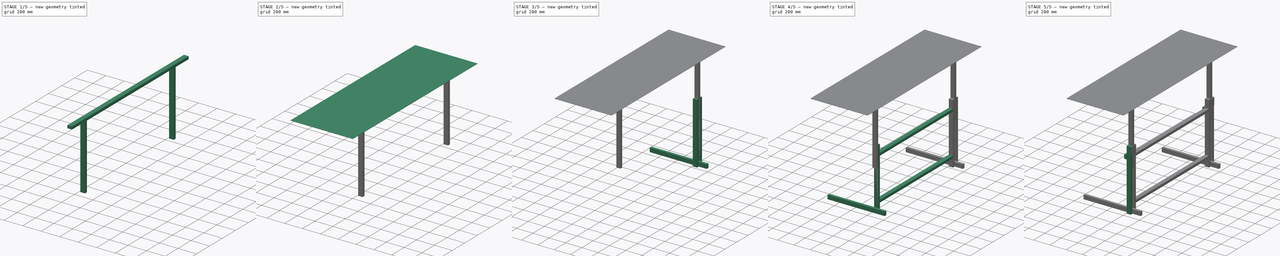
[diagram: build sequence overview — one tinted view per stage of 5, left to right]
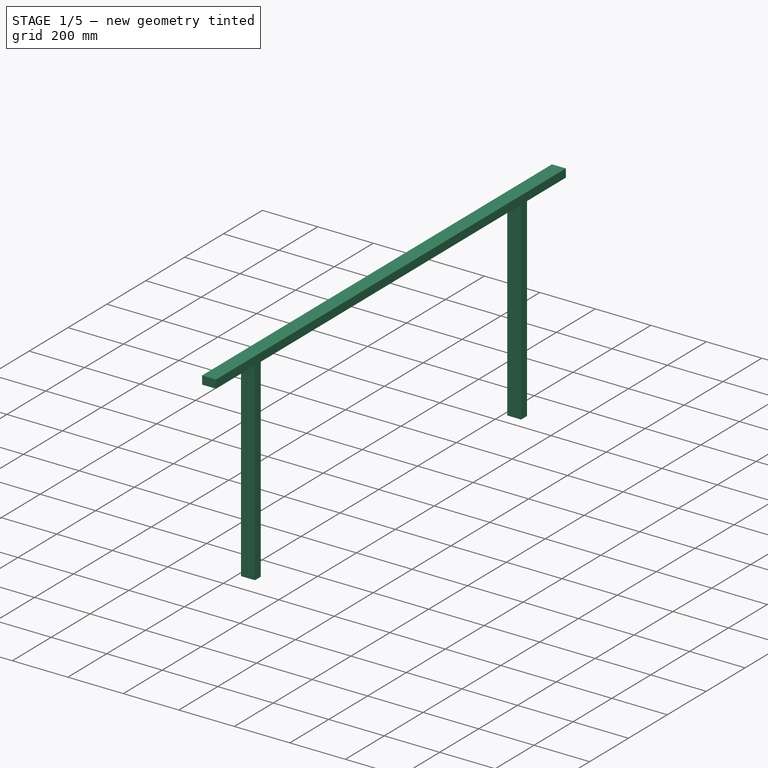
[diagram: stage 1 of 5 — iso view after this stage's code; geometry added in this stage tinted green]
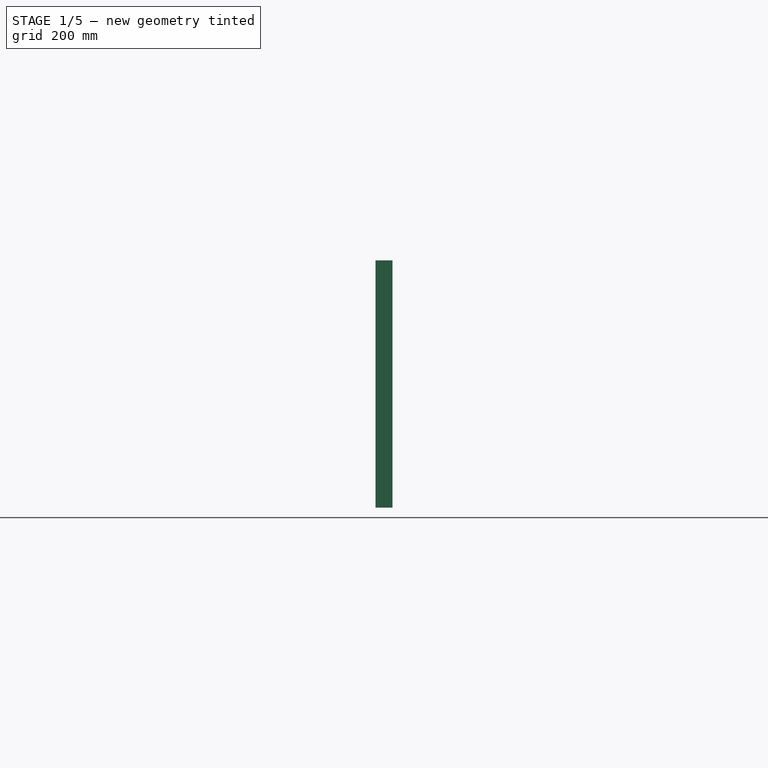
[diagram: stage 1 of 5 — front view after this stage's code; geometry added in this stage tinted green]
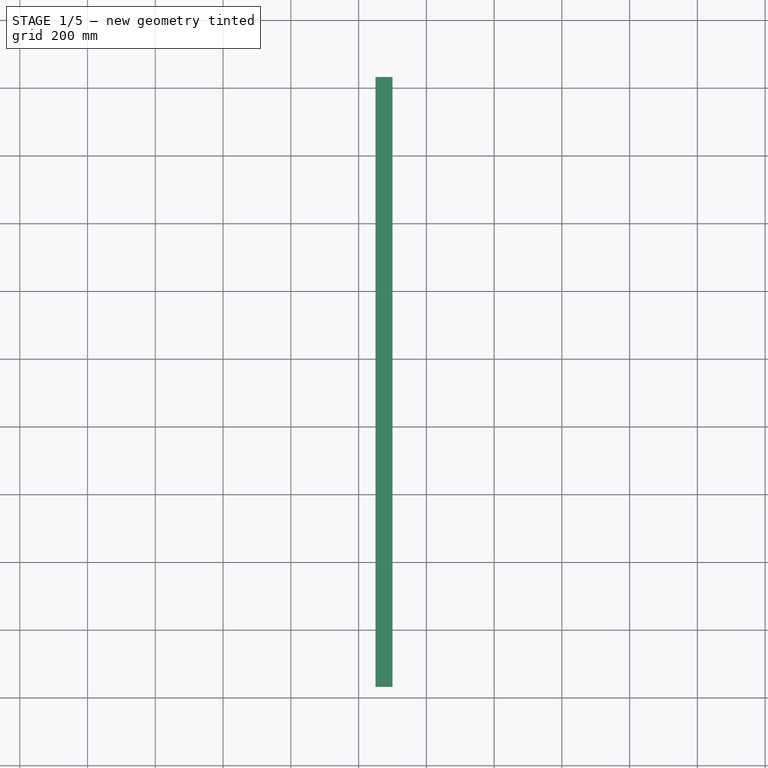
[diagram: stage 1 of 5 — top view after this stage's code; geometry added in this stage tinted green]
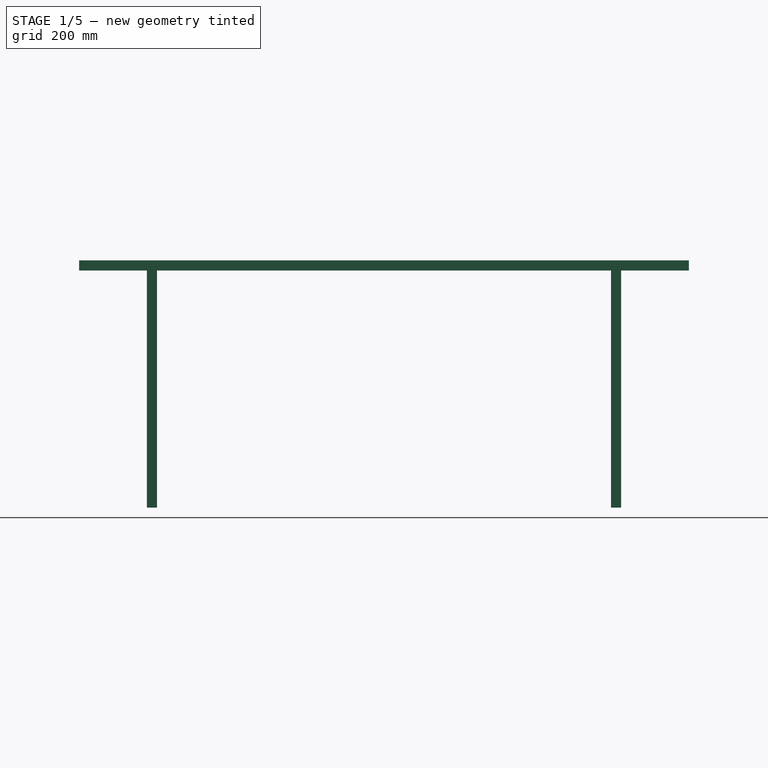
[diagram: stage 1 of 5 — right view after this stage's code; geometry added in this stage tinted green]
FCSTD DOCUMENT  (FreeCAD 0.19R24276 (Git))
Label: oficina
License: All rights reserved
LicenseURL: http://en.wikipedia.org/wiki/All_rights_reserved
objects: Sketcher::SketchObject×16, PartDesign::Pad×15, PartDesign::Body×3
note: 49 computed .brp shape members not serialized (recipe doc carries the construction recipe); baked Part::Feature solids carry a one-line shape summary decoded from their .brp

FEATURE [PartDesign::Body] Body001  label="parteDeBaixo"
  Group = -> [Sketch001,Pad,Sketch002,Pad001,Sketch003,Pad002,Sketch004,Pad003,Sketch005,Pad004,Sketch006,Pad005,Sketch007,Pad006,Sketch008,Pad007,Sketch009,Pad008]
  Origin = -> Origin001
  Tip = -> Pad008
FEATURE [Sketcher::SketchObject] Sketch010
  AttachmentOffset = pos=(0,0,500) rot=(0,0,1;0rad)
  FullyConstrained = true
  MapMode = 5
  Placement = pos=(0,0,500) rot=(0,0,1;0rad)
  Support = -> [XY_Plane002]
  expr: Constraints[11] = -(50 + 300 + 30 + 30)
  sketch-geometry (4):
    g0: LineSegment StartX=-150 StartY=-380 StartZ=0 EndX=-100 EndY=-380 EndZ=0
    g1: LineSegment StartX=-100 StartY=-380 StartZ=0 EndX=-100 EndY=-410 EndZ=0
    g2: LineSegment StartX=-100 StartY=-410 StartZ=0 EndX=-150 EndY=-410 EndZ=0
    g3: LineSegment StartX=-150 StartY=-410 StartZ=0 EndX=-150 EndY=-380 EndZ=0
  constraints (12):
    c: Coincident(g0,g1)
    c: Coincident(g1,g2)
    c: Coincident(g2,g3)
    c: Coincident(g3,g0)
    c: Horizontal(g0)
    c: Horizontal(g2)
    c: Vertical(g1)
    c: Vertical(g3)
    c: DistanceX(g0,g0) = 50
    c: DistanceY(g1,g1) = 30
    c: DistanceX(g1) = -100
    c: DistanceY(g1) = -410
FEATURE [PartDesign::Pad] Pad009  label="baseEsquerda001"
  Direction = (1,1,1)
  Length = 700
  Length2 = 100
  Profile = -> Sketch010
  Type = 0
  expr: Length = 750 - 50
FEATURE [Sketcher::SketchObject] Sketch011
  ExternalGeometry = -> [Pad009]
  FullyConstrained = true
  MapMode = 5
  Placement = pos=(0,0,1200) rot=(0,0,1;0rad)
  Support = -> [Pad009]
  expr: Constraints[11] = (1800 - (1280 + 30 + 30 + 30 + 30)) / 2
  expr: Constraints[9] = 2000 - 100 - 100
  sketch-geometry (4):
    g0: LineSegment StartX=-150 StartY=-180 StartZ=0 EndX=-100 EndY=-180 EndZ=0
    g1: LineSegment StartX=-100 StartY=-180 StartZ=0 EndX=-100 EndY=-1980 EndZ=0
    g2: LineSegment StartX=-100 StartY=-1980 StartZ=0 EndX=-150 EndY=-1980 EndZ=0
    g3: LineSegment StartX=-150 StartY=-1980 StartZ=0 EndX=-150 EndY=-180 EndZ=0
  constraints (12):
    c: Coincident(g0,g1)
    c: Coincident(g1,g2)
    c: Coincident(g2,g3)
    c: Coincident(g3,g0)
    c: Horizontal(g0)
    c: Horizontal(g2)
    c: Vertical(g1)
    c: Vertical(g3)
    c: DistanceX(g0,g0) = 50
    c: DistanceY(g1,g1) = 1800
    c: DistanceX(g0,g-3) = 0
    c: DistanceY(g-3,g0) = 200
FEATURE [PartDesign::Pad] Pad010  label="viga"
  BaseFeature = -> Pad009
  Direction = (1,1,1)
  Length = 30
  Length2 = 100
  Profile = -> Sketch011
  Type = 0
FEATURE [Sketcher::SketchObject] Sketch012
  ExternalGeometry = -> [Pad010]
  FullyConstrained = true
  MapMode = 5
  Placement = pos=(0,0,1200) rot=(1,0,0;3.14159rad)
  Support = -> [Pad010]
  expr: Constraints[10] = 1280 + 30 + 30
  sketch-geometry (4):
    g0: LineSegment StartX=-150 StartY=1780 StartZ=0 EndX=-100 EndY=1780 EndZ=0
    g1: LineSegment StartX=-100 StartY=1780 StartZ=0 EndX=-100 EndY=1750 EndZ=0
    g2: LineSegment StartX=-100 StartY=1750 StartZ=0 EndX=-150 EndY=1750 EndZ=0
    g3: LineSegment StartX=-150 StartY=1750 StartZ=0 EndX=-150 EndY=1780 EndZ=0
  constraints (12):
    c: Coincident(g0,g1)
    c: Coincident(g1,g2)
    c: Coincident(g2,g3)
    c: Coincident(g3,g0)
    c: Horizontal(g0)
    c: Horizontal(g2)
    c: Vertical(g1)
    c: Vertical(g3)
    c: DistanceX(g0,g0) = 50
    c: DistanceY(g3,g3) = 30
    c: DistanceY(g-4,g1) = 1340
    c: DistanceX(g-4,g1) = 0
FEATURE [PartDesign::Pad] Pad011  label="baseDireita001"
  BaseFeature = -> Pad010
  Direction = (1,1,1)
  Length = 700
  Length2 = 100
  Profile = -> Sketch012
  Type = 0
  expr: Length = 750 - 50
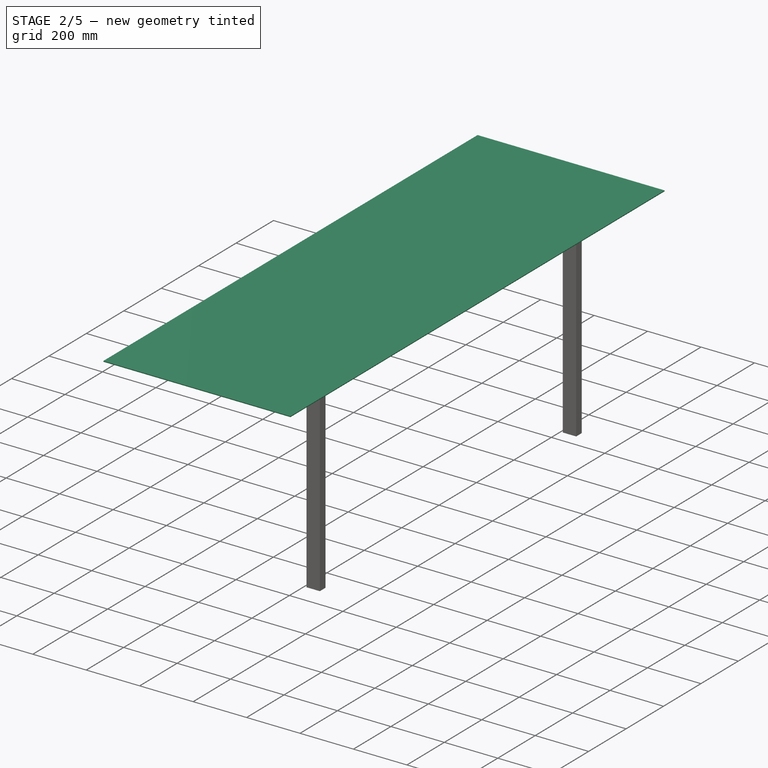
[diagram: stage 2 of 5 — iso view after this stage's code; geometry added in this stage tinted green]
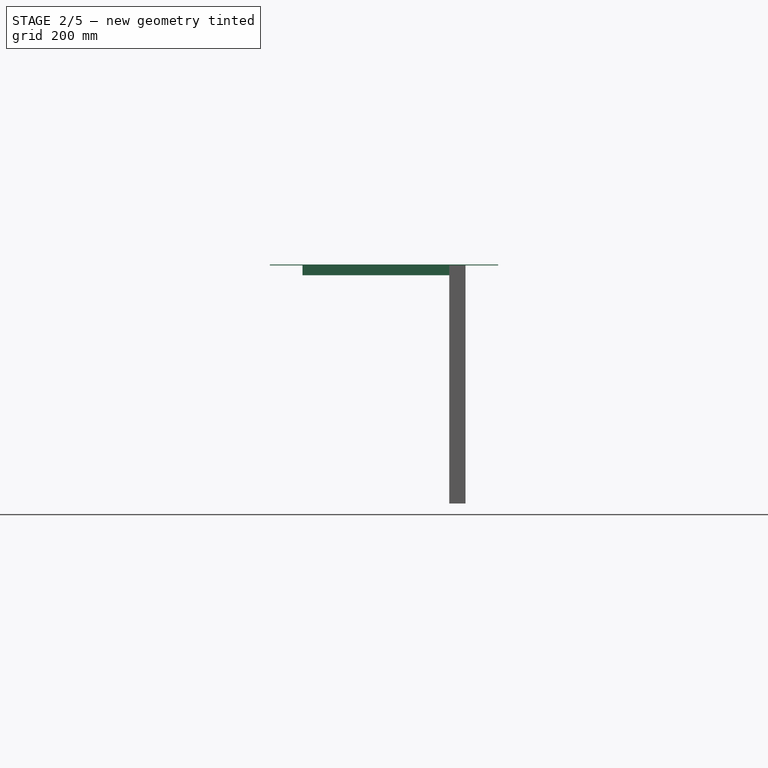
[diagram: stage 2 of 5 — front view after this stage's code; geometry added in this stage tinted green]
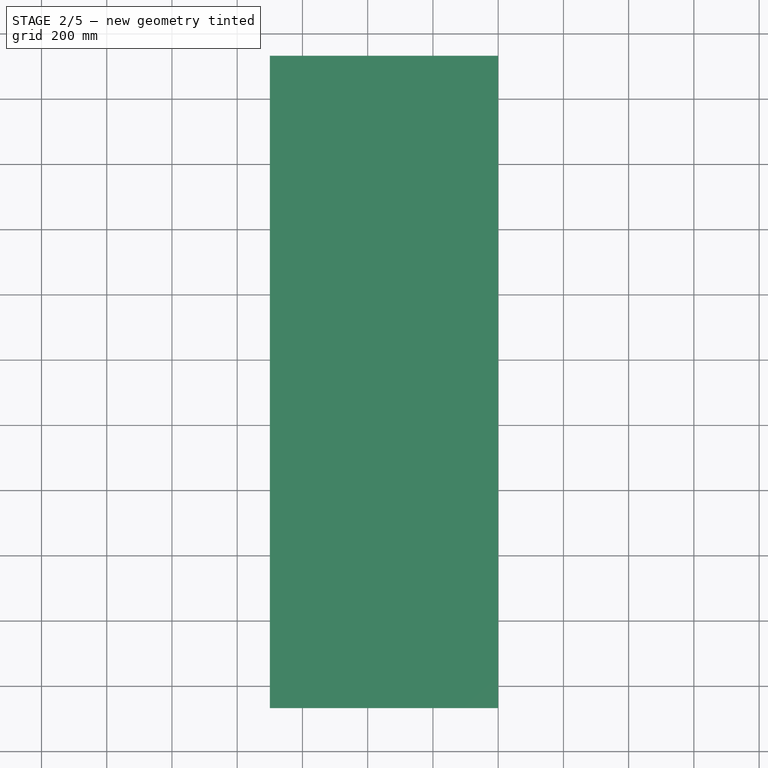
[diagram: stage 2 of 5 — top view after this stage's code; geometry added in this stage tinted green]
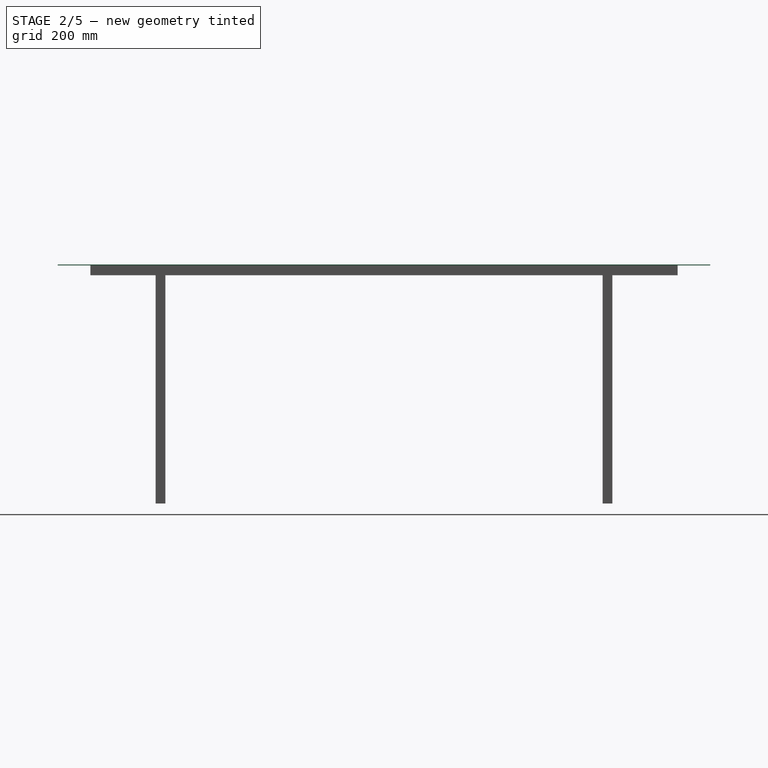
[diagram: stage 2 of 5 — right view after this stage's code; geometry added in this stage tinted green]
FEATURE [Sketcher::SketchObject] Sketch013
  ExternalGeometry = -> [Pad011]
  FullyConstrained = true
  MapMode = 5
  Placement = pos=(-150,0,0) rot=(0.57735,-0.57735,-0.57735;2.0944rad)
  Support = -> [Pad011]
  sketch-geometry (8):
    g0: LineSegment StartX=360 StartY=1230 StartZ=0 EndX=410 EndY=1230 EndZ=0
    g1: LineSegment StartX=410 StartY=1230 StartZ=0 EndX=410 EndY=1200 EndZ=0
    g2: LineSegment StartX=410 StartY=1200 StartZ=0 EndX=360 EndY=1200 EndZ=0
    g3: LineSegment StartX=360 StartY=1200 StartZ=0 EndX=360 EndY=1230 EndZ=0
    g4: LineSegment StartX=1750 StartY=1230 StartZ=0 EndX=1800 EndY=1230 EndZ=0
    g5: LineSegment StartX=1800 StartY=1230 StartZ=0 EndX=1800 EndY=1200 EndZ=0
    g6: LineSegment StartX=1800 StartY=1200 StartZ=0 EndX=1750 EndY=1200 EndZ=0
    g7: LineSegment StartX=1750 StartY=1200 StartZ=0 EndX=1750 EndY=1230 EndZ=0
  constraints (22):
    c: Coincident(g0,g1)
    c: Coincident(g1,g2)
    c: Coincident(g2,g3)
    c: Coincident(g3,g0)
    c: Horizontal(g0)
    c: Horizontal(g2)
    c: Vertical(g1)
    c: Vertical(g3)
    c: Coincident(g4,g5)
    c: Coincident(g5,g6)
    c: Coincident(g6,g7)
    c: Coincident(g7,g4)
    c: Horizontal(g4)
    c: Horizontal(g6)
    c: Vertical(g5)
    c: Vertical(g7)
    c: DistanceX(g0,g0) = 50
    c: Equal(g0,g4)
    c: DistanceY(g3,g3) = 30
    c: Equal(g3,g7)
    c: Coincident(g1,g-3)
    c: Coincident(g6,g-5)
FEATURE [PartDesign::Pad] Pad012  label="tirantes"
  BaseFeature = -> Pad011
  Direction = (1,1,1)
  Length = 400
  Length2 = 100
  Profile = -> Sketch013
  Type = 0
  expr: Length = 700 - 100 - 50 - 100 - 50
FEATURE [Sketcher::SketchObject] Sketch014
  ExternalGeometry = -> [Pad012]
  FullyConstrained = true
  MapMode = 5
  Placement = pos=(-550,0,0) rot=(0.57735,-0.57735,-0.57735;2.0944rad)
  Support = -> [Pad012]
  sketch-geometry (4):
    g0: LineSegment StartX=180 StartY=1230 StartZ=0 EndX=1980 EndY=1230 EndZ=0
    g1: LineSegment StartX=1980 StartY=1230 StartZ=0 EndX=1980 EndY=1200 EndZ=0
    g2: LineSegment StartX=1980 StartY=1200 StartZ=0 EndX=180 EndY=1200 EndZ=0
    g3: LineSegment StartX=180 StartY=1200 StartZ=0 EndX=180 EndY=1230 EndZ=0
  constraints (12):
    c: Coincident(g0,g1)
    c: Coincident(g1,g2)
    c: Coincident(g2,g3)
    c: Coincident(g3,g0)
    c: Horizontal(g0)
    c: Horizontal(g2)
    c: Vertical(g1)
    c: Vertical(g3)
    c: DistanceY(g3,g3) = 30
    c: DistanceX(g0,g0) = 1800
    c: DistanceY(g0,g-3) = 0
    c: DistanceX(g0,g-3) = 180
FEATURE [PartDesign::Pad] Pad013  label="viga2"
  BaseFeature = -> Pad012
  Direction = (1,1,1)
  Length = 50
  Length2 = 100
  Profile = -> Sketch014
  Type = 0
FEATURE [Sketcher::SketchObject] Sketch015
  ExternalGeometry = -> [Pad013]
  FullyConstrained = true
  MapMode = 5
  Placement = pos=(0,0,1230) rot=(0,0,1;0rad)
  Support = -> [Pad013]
  expr: Constraints[11] = (2000 - 1800) / 2
  sketch-geometry (4):
    g0: LineSegment StartX=-700 StartY=-80 StartZ=0 EndX=0 EndY=-80 EndZ=0
    g1: LineSegment StartX=0 StartY=-80 StartZ=0 EndX=0 EndY=-2080 EndZ=0
    g2: LineSegment StartX=0 StartY=-2080 StartZ=0 EndX=-700 EndY=-2080 EndZ=0
    g3: LineSegment StartX=-700 StartY=-2080 StartZ=0 EndX=-700 EndY=-80 EndZ=0
  constraints (12):
    c: Coincident(g0,g1)
    c: Coincident(g1,g2)
    c: Coincident(g2,g3)
    c: Coincident(g3,g0)
    c: Horizontal(g0)
    c: Horizontal(g2)
    c: Vertical(g1)
    c: Vertical(g3)
    c: DistanceY(g3,g3) = 2000
    c: DistanceX(g2,g2) = 700
    c: DistanceX(g0,g-1) = 0
    c: DistanceY(g-3,g0) = 100
FEATURE [PartDesign::Pad] Pad014
  BaseFeature = -> Pad013
  Direction = (1,1,1)
  Length = 3
  Length2 = 100
  Profile = -> Sketch015
  Type = 0
FEATURE [PartDesign::Body] Body002  label="parteDeCima"
  Group = -> [Sketch010,Pad009,Sketch011,Pad010,Sketch012,Pad011,Sketch013,Pad012,Sketch014,Pad013,Sketch015,Pad014]
  Origin = -> Origin002
  Tip = -> Pad014
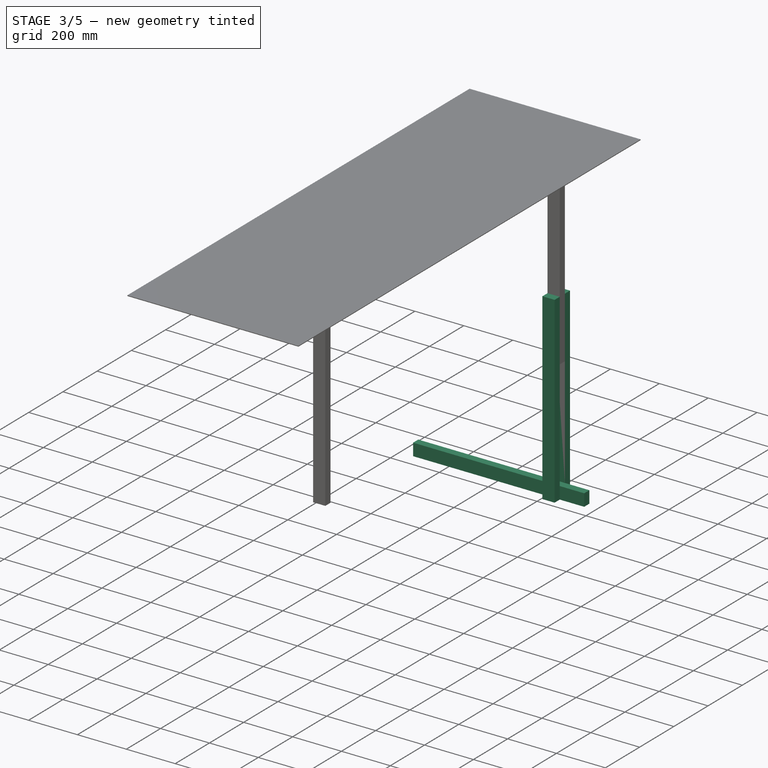
[diagram: stage 3 of 5 — iso view after this stage's code; geometry added in this stage tinted green]
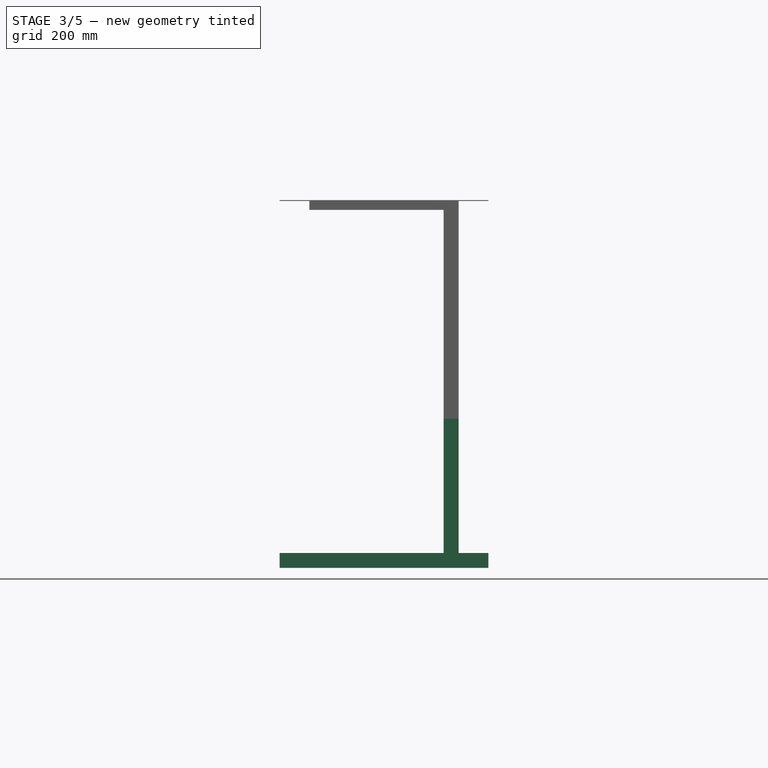
[diagram: stage 3 of 5 — front view after this stage's code; geometry added in this stage tinted green]
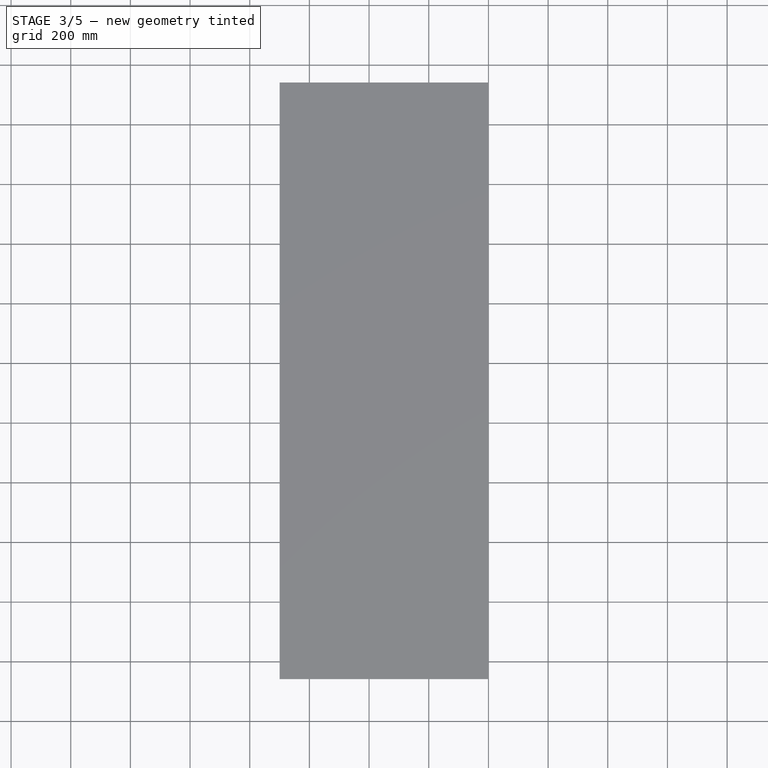
[diagram: stage 3 of 5 — top view after this stage's code; geometry added in this stage tinted green]
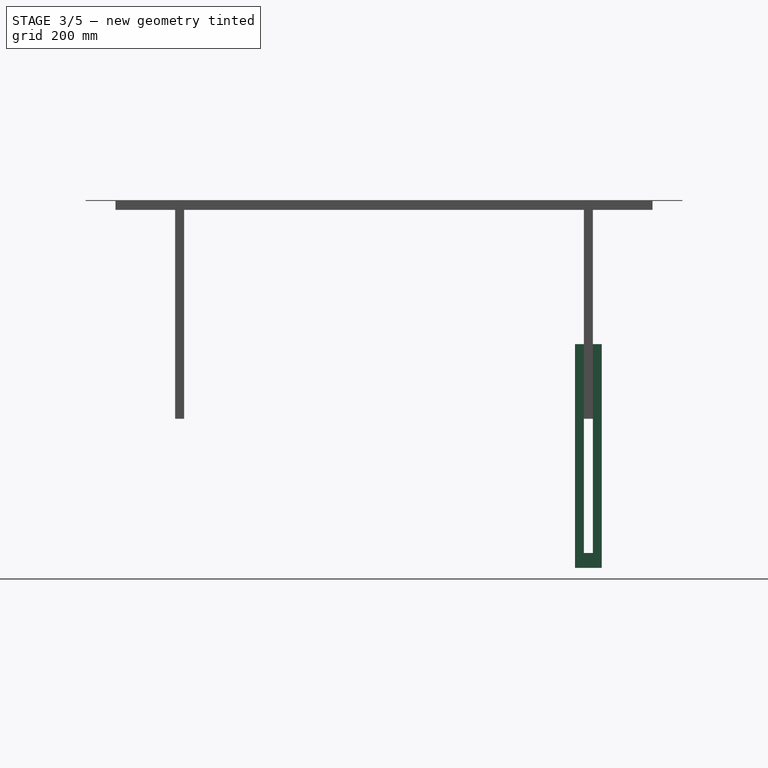
[diagram: stage 3 of 5 — right view after this stage's code; geometry added in this stage tinted green]
FEATURE [Sketcher::SketchObject] Sketch
  FullyConstrained = true
  MapMode = 5
  Support = -> [XY_Plane]
  sketch-geometry (4):
    g0: LineSegment StartX=0 StartY=-2100 StartZ=0 EndX=-2540 EndY=-2100 EndZ=0
    g1: LineSegment StartX=-2540 StartY=-2100 StartZ=0 EndX=-4640 EndY=0 EndZ=0
    g2: LineSegment StartX=-4640 StartY=0 StartZ=0 EndX=0 EndY=0 EndZ=0
    g3: LineSegment StartX=0 StartY=0 StartZ=0 EndX=0 EndY=-2100 EndZ=0
  constraints (11):
    c: Horizontal(g2)
    c: Horizontal(g0)
    c: Vertical(g3)
    c: Coincident(g3,g-1)
    c: Coincident(g3,g0)
    c: Coincident(g0,g1)
    c: Coincident(g1,g2)
    c: Coincident(g2,g3)
    c: DistanceY(g3,g3) = 2100
    c: DistanceX(g0,g0) = 2540
    c: Angle(g0,g1) = 2.35619
FEATURE [PartDesign::Body] Body  label="area"
  Group = -> [Sketch]
  Origin = -> Origin
FEATURE [Sketcher::SketchObject] Sketch001
  FullyConstrained = true
  MapMode = 5
  Placement = pos=(0,0,0) rot=(0.57735,0.57735,0.57735;2.0944rad)
  Support = -> [YZ_Plane001]
  expr: Constraints[11] = 50 + 30 + 300
  sketch-geometry (4):
    g0: LineSegment StartX=-410 StartY=50 StartZ=0 EndX=-380 EndY=50 EndZ=0
    g1: LineSegment StartX=-380 StartY=50 StartZ=0 EndX=-380 EndY=0 EndZ=0
    g2: LineSegment StartX=-380 StartY=0 StartZ=0 EndX=-410 EndY=0 EndZ=0
    g3: LineSegment StartX=-410 StartY=0 StartZ=0 EndX=-410 EndY=50 EndZ=0
  constraints (12):
    c: Coincident(g0,g1)
    c: Coincident(g1,g2)
    c: Coincident(g2,g3)
    c: Coincident(g3,g0)
    c: Horizontal(g0)
    c: Horizontal(g2)
    c: Vertical(g1)
    c: Vertical(g3)
    c: DistanceY(g1,g1) = 50
    c: DistanceX(g2,g2) = 30
    c: DistanceY(g-1,g1) = 0
    c: DistanceX(g1,g-1) = 380
FEATURE [PartDesign::Pad] Pad  label="baseEsquerda"
  Direction = (1,1,1)
  Length = 700
  Length2 = 100
  Placement = pos=(0,0,0) rot=(0.57735,0.57735,0.57735;2.0944rad)
  Profile = -> Sketch001
  Reversed = true
  Type = 0
FEATURE [Sketcher::SketchObject] Sketch002
  FullyConstrained = true
  MapMode = 5
  Placement = pos=(-1.804e-13,-410,9.02e-14) rot=(-0.57735,-0.57735,0.57735;4.18879rad)
  Support = -> [Pad]
  sketch-geometry (4):
    g0: LineSegment StartX=-750 StartY=-100 StartZ=0 EndX=0 EndY=-100 EndZ=0
    g1: LineSegment StartX=0 StartY=-100 StartZ=0 EndX=0 EndY=-150 EndZ=0
    g2: LineSegment StartX=0 StartY=-150 StartZ=0 EndX=-750 EndY=-150 EndZ=0
    g3: LineSegment StartX=-750 StartY=-150 StartZ=0 EndX=-750 EndY=-100 EndZ=0
  constraints (12):
    c: Coincident(g0,g1)
    c: Coincident(g1,g2)
    c: Coincident(g2,g3)
    c: Coincident(g3,g0)
    c: Horizontal(g0)
    c: Horizontal(g2)
    c: Vertical(g1)
    c: Vertical(g3)
    c: DistanceY(g1,g1) = 50
    c: DistanceX(g2,g2) = 750
    c: DistanceX(g-1,g0) = 0
    c: DistanceY(g0,g-1) = 100
FEATURE [PartDesign::Pad] Pad001  label="peEsquerdo1"
  BaseFeature = -> Pad
  Direction = (1,1,1)
  Length = 30
  Length2 = 100
  Placement = pos=(0,0,0) rot=(0.57735,0.57735,0.57735;2.0944rad)
  Profile = -> Sketch002
  Type = 0
FEATURE [Sketcher::SketchObject] Sketch003
  ExternalGeometry = -> [Pad001]
  FullyConstrained = true
  MapMode = 5
  Placement = pos=(-1.672e-13,-380,8.36e-14) rot=(0.57735,0.57735,0.57735;4.18879rad)
  Support = -> [Pad001]
  sketch-geometry (4):
    g0: LineSegment StartX=0 StartY=-100 StartZ=0 EndX=750 EndY=-100 EndZ=0
    g1: LineSegment StartX=750 StartY=-100 StartZ=0 EndX=750 EndY=-150 EndZ=0
    g2: LineSegment StartX=750 StartY=-150 StartZ=0 EndX=0 EndY=-150 EndZ=0
    g3: LineSegment StartX=0 StartY=-150 StartZ=0 EndX=0 EndY=-100 EndZ=0
  constraints (12):
    c: Coincident(g0,g1)
    c: Coincident(g1,g2)
    c: Coincident(g2,g3)
    c: Coincident(g3,g0)
    c: Horizontal(g0)
    c: Horizontal(g2)
    c: Vertical(g1)
    c: Vertical(g3)
    c: DistanceY(g3,g3) = 50
    c: DistanceX(g0,g0) = 750
    c: DistanceX(g2,g-1) = 0
    c: DistanceY(g0,g-3) = 0
FEATURE [PartDesign::Pad] Pad002  label="peEsquerdo2"
  BaseFeature = -> Pad001
  Direction = (1,1,1)
  Length = 30
  Length2 = 100
  Placement = pos=(0,0,0) rot=(0.57735,0.57735,0.57735;2.0944rad)
  Profile = -> Sketch003
  Type = 0
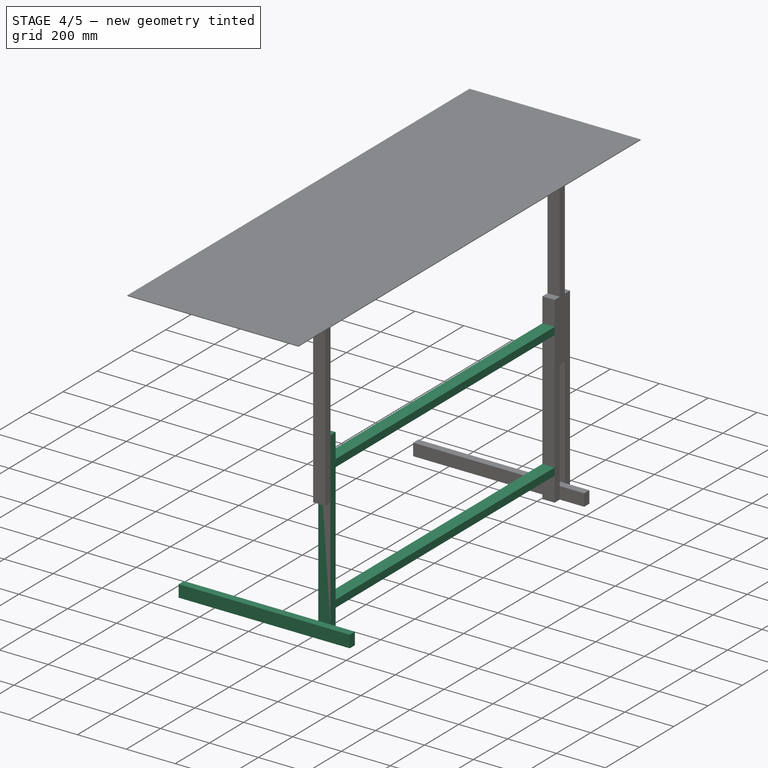
[diagram: stage 4 of 5 — iso view after this stage's code; geometry added in this stage tinted green]
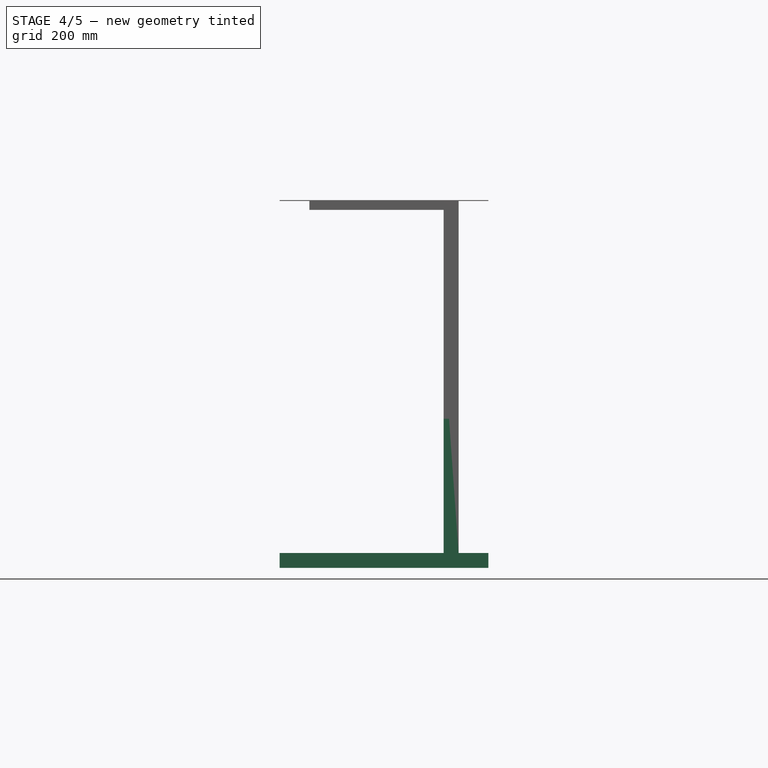
[diagram: stage 4 of 5 — front view after this stage's code; geometry added in this stage tinted green]
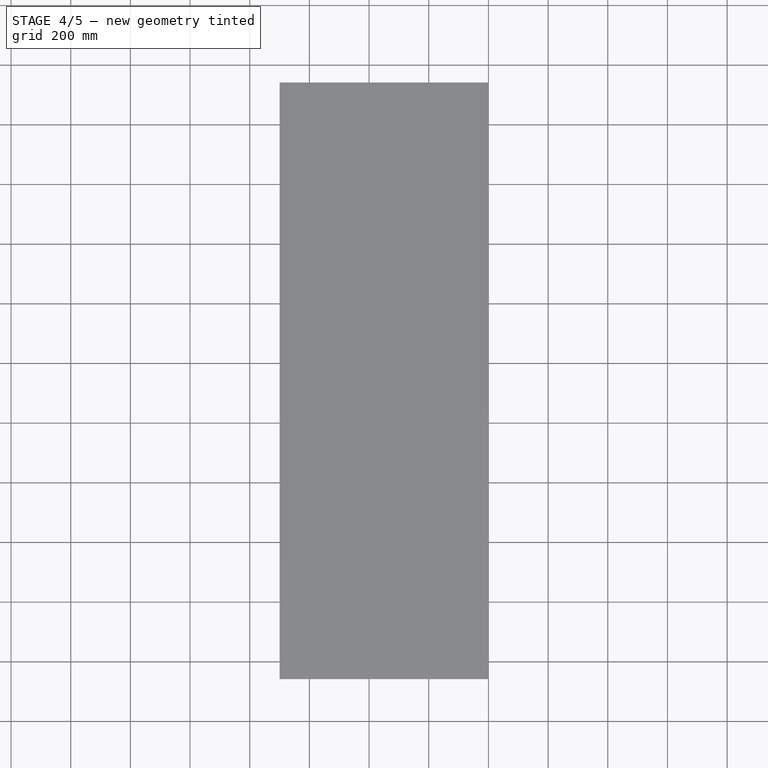
[diagram: stage 4 of 5 — top view after this stage's code; geometry added in this stage tinted green]
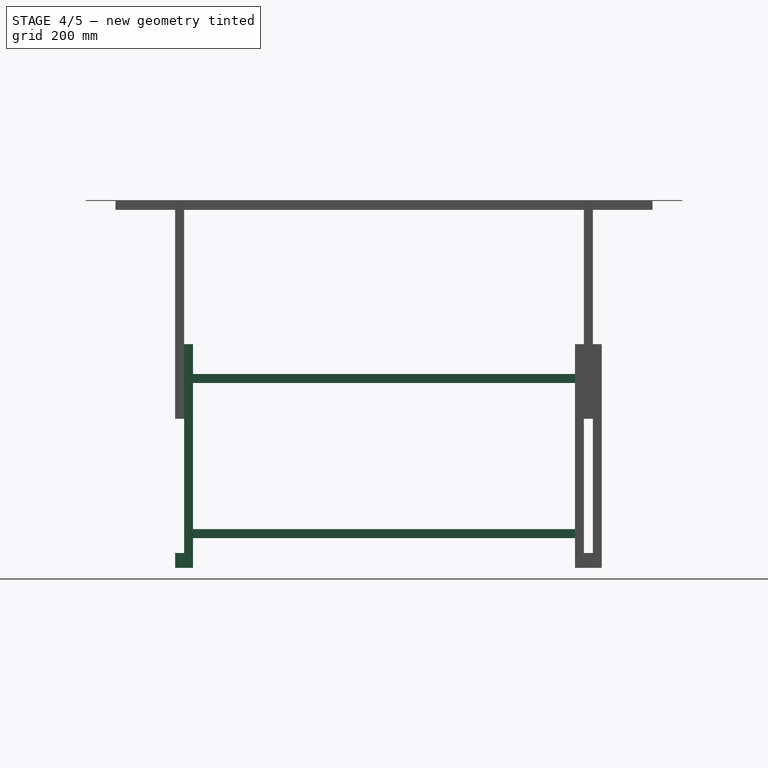
[diagram: stage 4 of 5 — right view after this stage's code; geometry added in this stage tinted green]
FEATURE [Sketcher::SketchObject] Sketch004
  ExternalGeometry = -> [Pad002]
  FullyConstrained = true
  MapMode = 5
  Placement = pos=(0,-440,6.6e-14) rot=(0.57735,0.57735,-0.57735;2.0944rad)
  Support = -> [Pad002]
  sketch-geometry (8):
    g0: LineSegment StartX=-130 StartY=-100 StartZ=0 EndX=-100 EndY=-100 EndZ=0
    g1: LineSegment StartX=-100 StartY=-100 StartZ=0 EndX=-100 EndY=-150 EndZ=0
    g2: LineSegment StartX=-100 StartY=-150 StartZ=0 EndX=-130 EndY=-150 EndZ=0
    g3: LineSegment StartX=-130 StartY=-150 StartZ=0 EndX=-130 EndY=-100 EndZ=0
    g4: LineSegment StartX=-650 StartY=-100 StartZ=0 EndX=-620 EndY=-100 EndZ=0
    g5: LineSegment StartX=-620 StartY=-100 StartZ=0 EndX=-620 EndY=-150 EndZ=0
    g6: LineSegment StartX=-620 StartY=-150 StartZ=0 EndX=-650 EndY=-150 EndZ=0
    g7: LineSegment StartX=-650 StartY=-150 StartZ=0 EndX=-650 EndY=-100 EndZ=0
  constraints (24):
    c: Coincident(g0,g1)
    c: Coincident(g1,g2)
    c: Coincident(g2,g3)
    c: Coincident(g3,g0)
    c: Horizontal(g0)
    c: Horizontal(g2)
    c: Vertical(g1)
    c: Vertical(g3)
    c: Coincident(g4,g5)
    c: Coincident(g5,g6)
    c: Coincident(g6,g7)
    c: Coincident(g7,g4)
    c: Horizontal(g4)
    c: Horizontal(g6)
    c: Vertical(g5)
    c: Vertical(g7)
    c: DistanceY(g1,g1) = 50
    c: Equal(g1,g5)
    c: DistanceX(g0,g0) = 30
    c: Equal(g2,g6)
    c: DistanceX(g1,g-1) = 100
    c: DistanceY(g-3,g1) = 0
    c: DistanceY(g-3,g5) = 0
    c: DistanceX(g-3,g6) = 100
FEATURE [PartDesign::Pad] Pad003  label="vigas"
  BaseFeature = -> Pad002
  Direction = (1,1,1)
  Length = 1280
  Length2 = 100
  Placement = pos=(0,0,0) rot=(0.57735,0.57735,0.57735;2.0944rad)
  Profile = -> Sketch004
  Type = 0
  expr: Length = 2000 - 300 - 300 - 30 - 30 - 30 - 30
FEATURE [Sketcher::SketchObject] Sketch005
  ExternalGeometry = -> [Pad003]
  FullyConstrained = true
  MapMode = 5
  Placement = pos=(0,-1720,0) rot=(0.57735,0.57735,-0.57735;2.0944rad)
  Support = -> [Pad003]
  sketch-geometry (4):
    g0: LineSegment StartX=-750 StartY=-100 StartZ=0 EndX=-5.684e-13 EndY=-100 EndZ=0
    g1: LineSegment StartX=-5.684e-13 StartY=-100 StartZ=0 EndX=-5.684e-13 EndY=-150 EndZ=0
    g2: LineSegment StartX=-5.684e-13 StartY=-150 StartZ=0 EndX=-750 EndY=-150 EndZ=0
    g3: LineSegment StartX=-750 StartY=-150 StartZ=0 EndX=-750 EndY=-100 EndZ=0
  constraints (11):
    c: Coincident(g0,g1)
    c: Coincident(g1,g2)
    c: Coincident(g2,g3)
    c: Coincident(g3,g0)
    c: Horizontal(g0)
    c: Horizontal(g2)
    c: Vertical(g1)
    c: Vertical(g3)
    c: Coincident(g0,g-5)
    c: DistanceX(g2,g2) = 750
    c: DistanceY(g3,g3) = 50
FEATURE [PartDesign::Pad] Pad004  label="peDireito1"
  BaseFeature = -> Pad003
  Direction = (1,1,1)
  Length = 30
  Length2 = 100
  Placement = pos=(0,0,0) rot=(0.57735,0.57735,0.57735;2.0944rad)
  Profile = -> Sketch005
  Type = 0
FEATURE [Sketcher::SketchObject] Sketch006
  ExternalGeometry = -> [Pad004]
  FullyConstrained = true
  MapMode = 5
  Placement = pos=(0,-1750,5.25e-13) rot=(0.57735,0.57735,-0.57735;2.0944rad)
  Support = -> [Pad004]
  sketch-geometry (4):
    g0: LineSegment StartX=-50 StartY=0 StartZ=0 EndX=0 EndY=0 EndZ=0
    g1: LineSegment StartX=0 StartY=0 StartZ=0 EndX=0 EndY=-700 EndZ=0
    g2: LineSegment StartX=0 StartY=-700 StartZ=0 EndX=-50 EndY=-700 EndZ=0
    g3: LineSegment StartX=-50 StartY=-700 StartZ=0 EndX=-50 EndY=0 EndZ=0
  constraints (10):
    c: Coincident(g0,g1)
    c: Coincident(g1,g2)
    c: Coincident(g2,g3)
    c: Coincident(g3,g0)
    c: Horizontal(g0)
    c: Horizontal(g2)
    c: Vertical(g1)
    c: Vertical(g3)
    c: Coincident(g0,g-1)
    c: Coincident(g2,g-3)
FEATURE [PartDesign::Pad] Pad005  label="baseDireita"
  BaseFeature = -> Pad004
  Direction = (1,1,1)
  Length = 30
  Length2 = 100
  Placement = pos=(0,0,0) rot=(0.57735,0.57735,0.57735;2.0944rad)
  Profile = -> Sketch006
  Type = 0
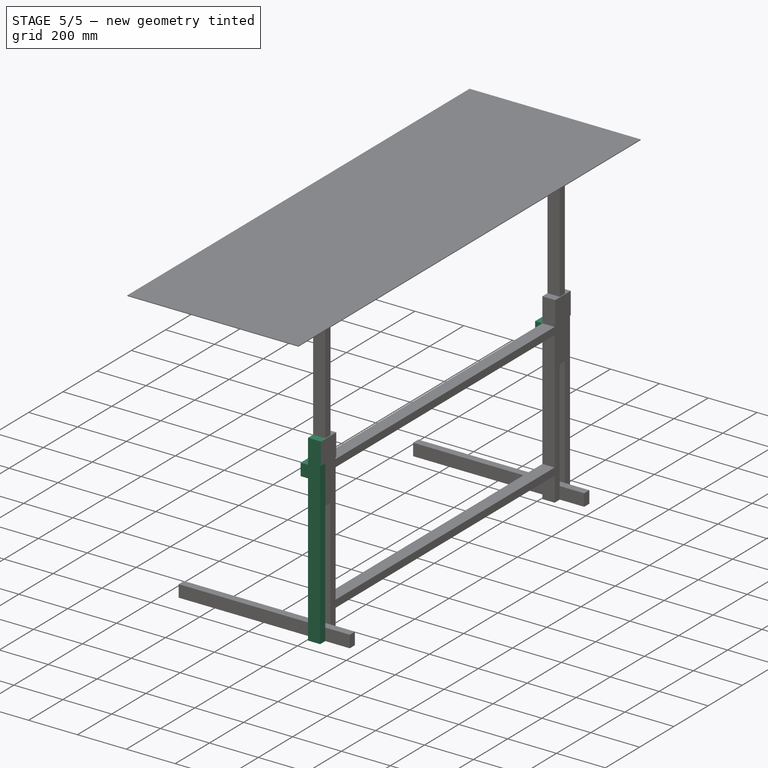
[diagram: stage 5 of 5 — iso view after this stage's code; geometry added in this stage tinted green]
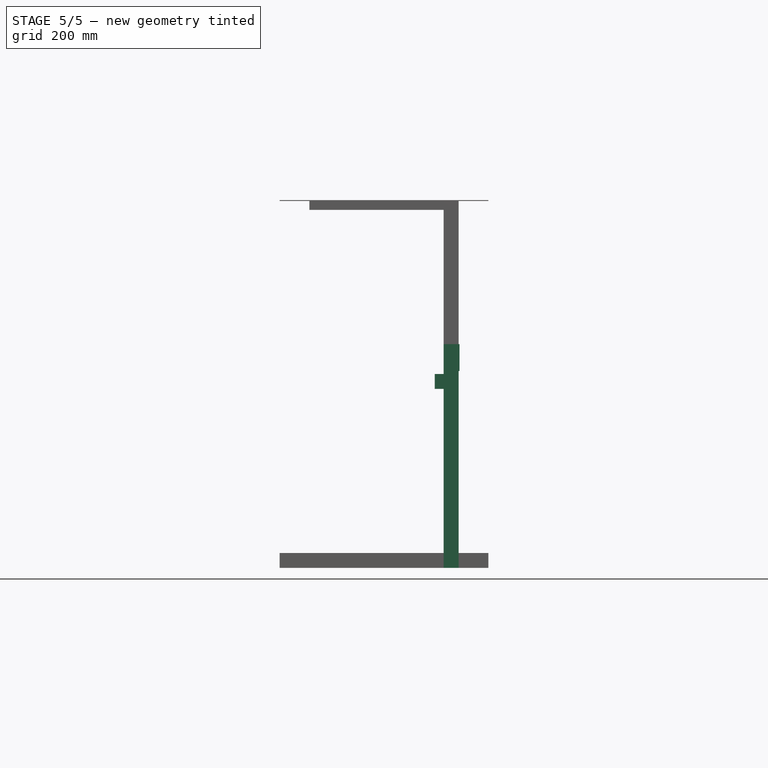
[diagram: stage 5 of 5 — front view after this stage's code; geometry added in this stage tinted green]
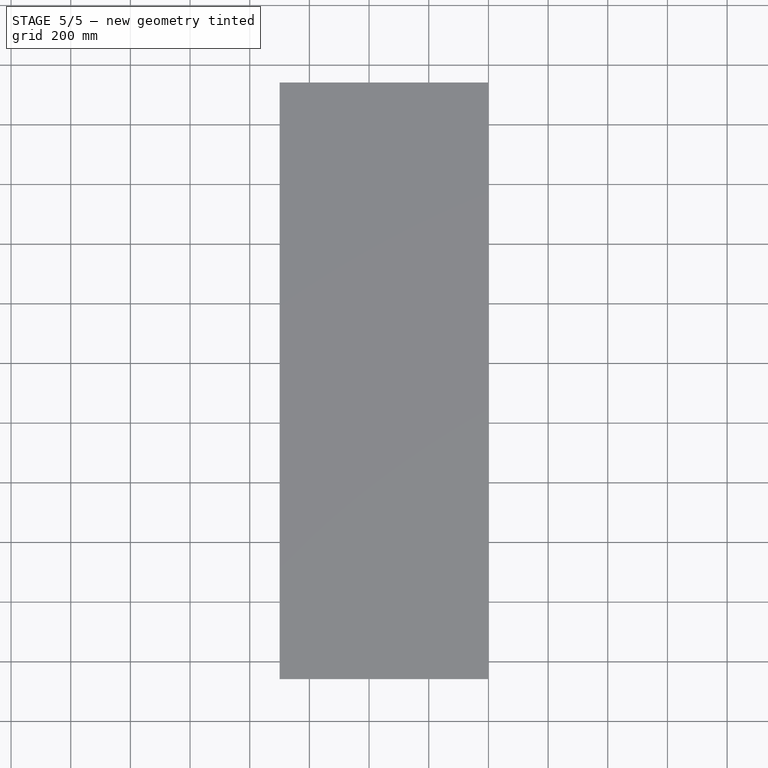
[diagram: stage 5 of 5 — top view after this stage's code; geometry added in this stage tinted green]
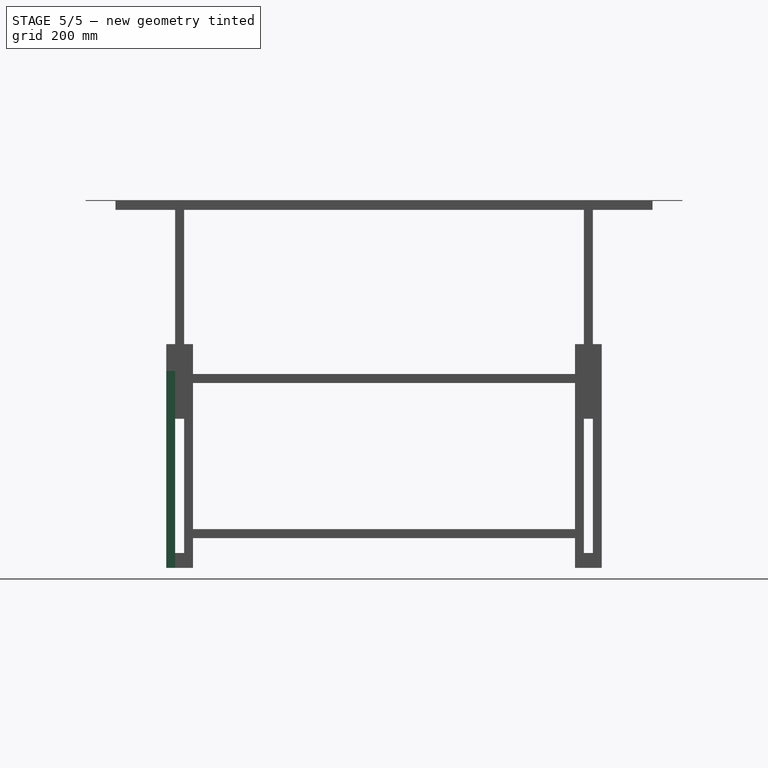
[diagram: stage 5 of 5 — right view after this stage's code; geometry added in this stage tinted green]
FEATURE [Sketcher::SketchObject] Sketch007
  ExternalGeometry = -> [Pad005]
  FullyConstrained = true
  MapMode = 5
  Placement = pos=(-5.696e-13,-1780,0) rot=(0.57735,0.57735,-0.57735;2.0944rad)
  Support = -> [Pad005]
  sketch-geometry (4):
    g0: LineSegment StartX=-750 StartY=-100 StartZ=0 EndX=-2.0464e-12 EndY=-100 EndZ=0
    g1: LineSegment StartX=-2.0464e-12 StartY=-100 StartZ=0 EndX=-2.0464e-12 EndY=-150 EndZ=0
    g2: LineSegment StartX=-2.0464e-12 StartY=-150 StartZ=0 EndX=-750 EndY=-150 EndZ=0
    g3: LineSegment StartX=-750 StartY=-150 StartZ=0 EndX=-750 EndY=-100 EndZ=0
  constraints (11):
    c: Coincident(g0,g1)
    c: Coincident(g1,g2)
    c: Coincident(g2,g3)
    c: Coincident(g3,g0)
    c: Horizontal(g0)
    c: Horizontal(g2)
    c: Vertical(g1)
    c: Vertical(g3)
    c: Coincident(g0,g-3)
    c: DistanceX(g2,g2) = 750
    c: DistanceY(g3,g3) = 50
FEATURE [PartDesign::Pad] Pad006  label="peDireito2"
  BaseFeature = -> Pad005
  Direction = (1,1,1)
  Length = 30
  Length2 = 100
  Placement = pos=(0,0,0) rot=(0.57735,0.57735,0.57735;2.0944rad)
  Profile = -> Sketch007
  Type = 0
FEATURE [Sketcher::SketchObject] Sketch008
  ExternalGeometry = -> [Pad006]
  FullyConstrained = true
  MapMode = 5
  Placement = pos=(-150,5.85e-14,-6.6e-14) rot=(0.57735,0.57735,-0.57735;4.18879rad)
  Support = -> [Pad006]
  sketch-geometry (8):
    g0: LineSegment StartX=-1810 StartY=-600 StartZ=0 EndX=-1720 EndY=-600 EndZ=0
    g1: LineSegment StartX=-1720 StartY=-600 StartZ=0 EndX=-1720 EndY=-650 EndZ=0
    g2: LineSegment StartX=-1720 StartY=-650 StartZ=0 EndX=-1810 EndY=-650 EndZ=0
    g3: LineSegment StartX=-1810 StartY=-650 StartZ=0 EndX=-1810 EndY=-600 EndZ=0
    g4: LineSegment StartX=-440 StartY=-600 StartZ=0 EndX=-350 EndY=-600 EndZ=0
    g5: LineSegment StartX=-350 StartY=-600 StartZ=0 EndX=-350 EndY=-650 EndZ=0
    g6: LineSegment StartX=-350 StartY=-650 StartZ=0 EndX=-440 EndY=-650 EndZ=0
    g7: LineSegment StartX=-440 StartY=-650 StartZ=0 EndX=-440 EndY=-600 EndZ=0
  constraints (24):
    c: Coincident(g0,g1)
    c: Coincident(g1,g2)
    c: Coincident(g2,g3)
    c: Coincident(g3,g0)
    c: Horizontal(g0)
    c: Horizontal(g2)
    c: Vertical(g1)
    c: Vertical(g3)
    c: Coincident(g4,g5)
    c: Coincident(g5,g6)
    c: Coincident(g6,g7)
    c: Coincident(g7,g4)
    c: Horizontal(g4)
    c: Horizontal(g6)
    c: Vertical(g5)
    c: Vertical(g7)
    c: DistanceY(g1,g1) = 50
    c: Equal(g1,g7)
    c: DistanceX(g0,g0) = 90
    c: Equal(g2,g6)
    c: DistanceX(g2,g-3) = 0
    c: DistanceY(g1,g-5) = 0
    c: DistanceY(g6,g-5) = 0
    c: DistanceX(g-6,g5) = 0
FEATURE [PartDesign::Pad] Pad007  label="reforço"
  BaseFeature = -> Pad006
  Direction = (1,1,1)
  Length = 30
  Length2 = 100
  Placement = pos=(0,0,0) rot=(0.57735,0.57735,0.57735;2.0944rad)
  Profile = -> Sketch008
  Type = 0
FEATURE [Sketcher::SketchObject] Sketch009
  ExternalGeometry = -> [Pad007]
  FullyConstrained = true
  MapMode = 5
  Placement = pos=(-100,3.9e-14,-3.3e-14) rot=(0.57735,0.57735,0.57735;2.0944rad)
  Support = -> [Pad007]
  sketch-geometry (8):
    g0: LineSegment StartX=-1810 StartY=750 StartZ=0 EndX=-1720 EndY=750 EndZ=0
    g1: LineSegment StartX=-1720 StartY=750 StartZ=0 EndX=-1720 EndY=660 EndZ=0
    g2: LineSegment StartX=-1720 StartY=660 StartZ=0 EndX=-1810 EndY=660 EndZ=0
    g3: LineSegment StartX=-1810 StartY=660 StartZ=0 EndX=-1810 EndY=750 EndZ=0
    g4: LineSegment StartX=-440 StartY=750 StartZ=0 EndX=-350 EndY=750 EndZ=0
    g5: LineSegment StartX=-350 StartY=750 StartZ=0 EndX=-350 EndY=660 EndZ=0
    g6: LineSegment StartX=-350 StartY=660 StartZ=0 EndX=-440 EndY=660 EndZ=0
    g7: LineSegment StartX=-440 StartY=660 StartZ=0 EndX=-440 EndY=750 EndZ=0
  constraints (22):
    c: Coincident(g0,g1)
    c: Coincident(g1,g2)
    c: Coincident(g2,g3)
    c: Coincident(g3,g0)
    c: Horizontal(g0)
    c: Horizontal(g2)
    c: Vertical(g1)
    c: Vertical(g3)
    c: Coincident(g4,g5)
    c: Coincident(g5,g6)
    c: Coincident(g6,g7)
    c: Coincident(g7,g4)
    c: Horizontal(g4)
    c: Horizontal(g6)
    c: Vertical(g5)
    c: Vertical(g7)
    c: DistanceX(g0,g0) = 90
    c: Equal(g0,g1)
    c: Equal(g0,g4)
    c: Equal(g4,g5)
    c: Coincident(g0,g-3)
    c: Coincident(g4,g-4)
FEATURE [PartDesign::Pad] Pad008
  BaseFeature = -> Pad007
  Direction = (1,1,1)
  Length = 3
  Length2 = 100
  Placement = pos=(0,0,0) rot=(0.57735,0.57735,0.57735;2.0944rad)
  Profile = -> Sketch009
  Type = 0
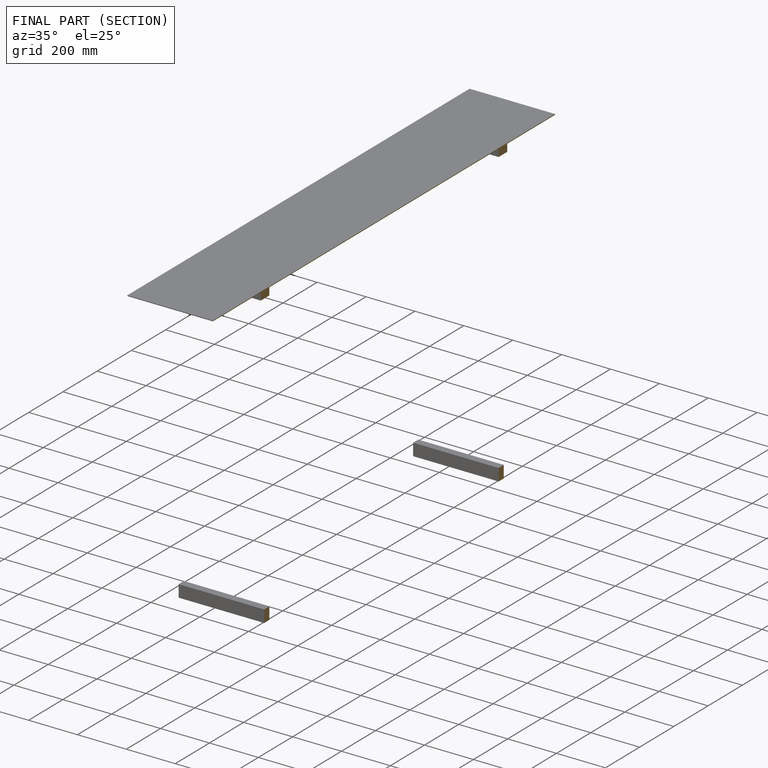
[diagram: finished part — half-section view (interior)]
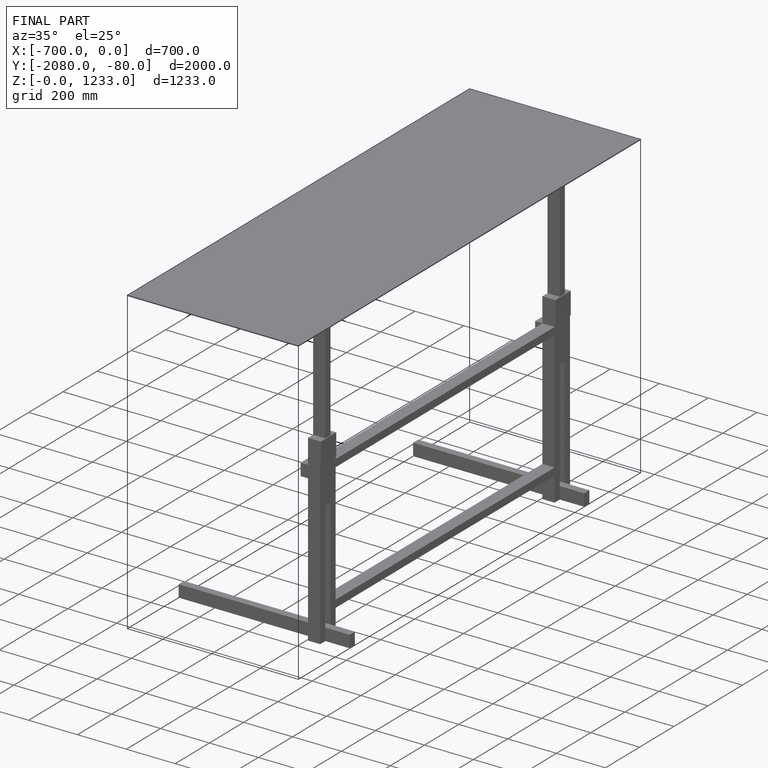
[diagram: finished part — iso view with bounding-box wireframe]
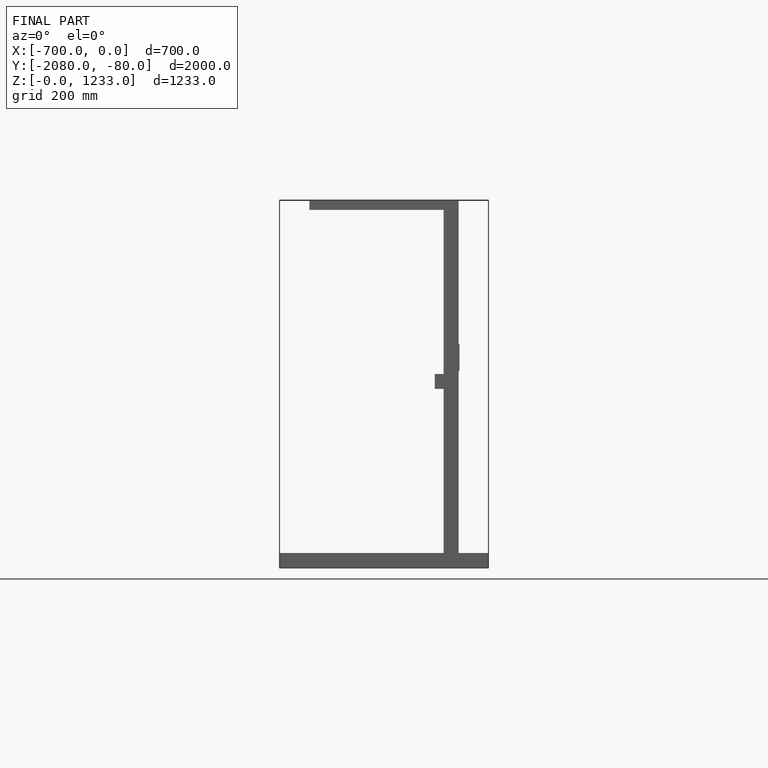
[diagram: finished part — front view with bounding-box wireframe]
